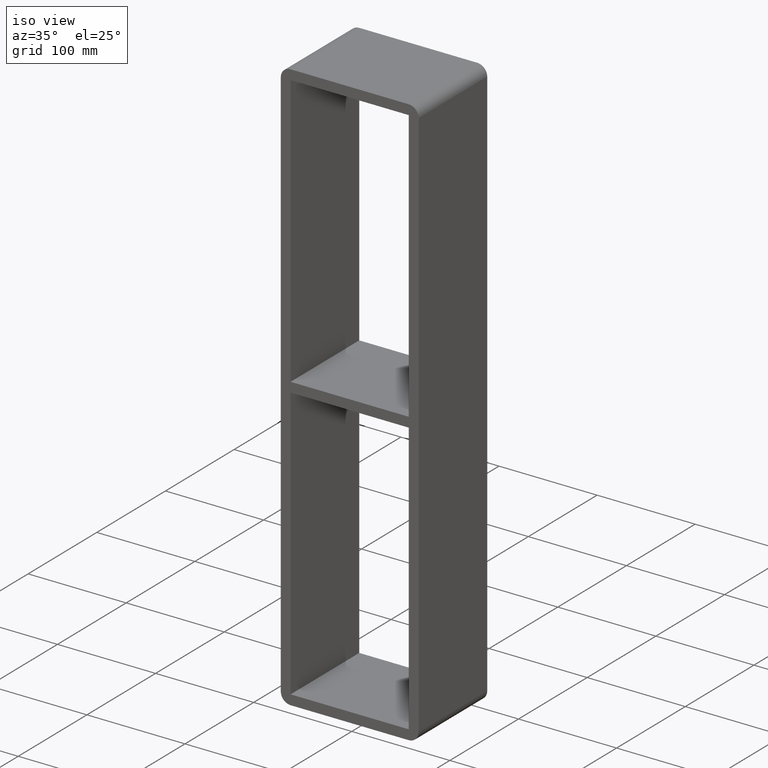
[diagram: clean part render]
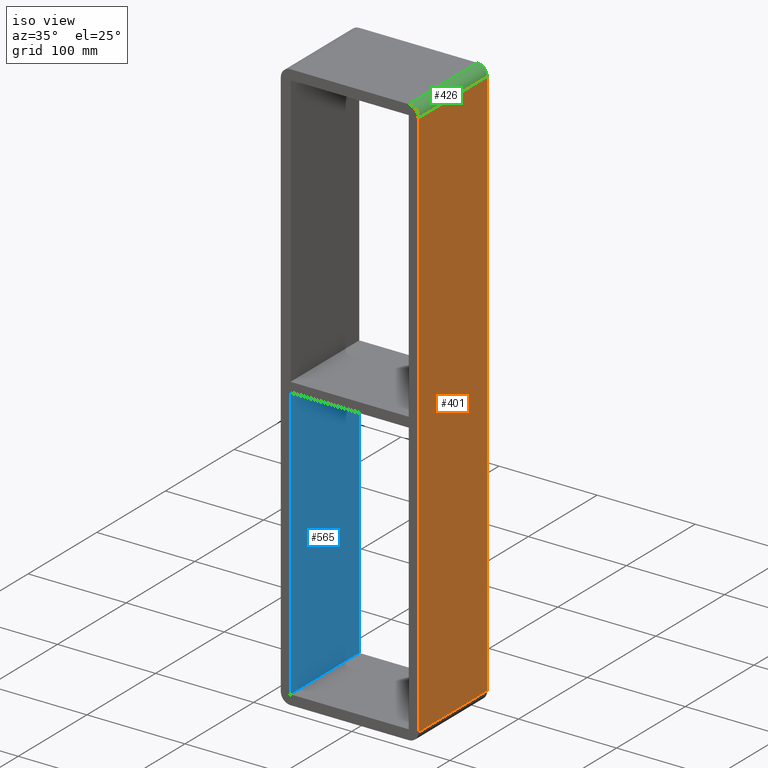
[diagram: same view with three faces highlighted in distinct colors, each labeled with its STEP entity id]
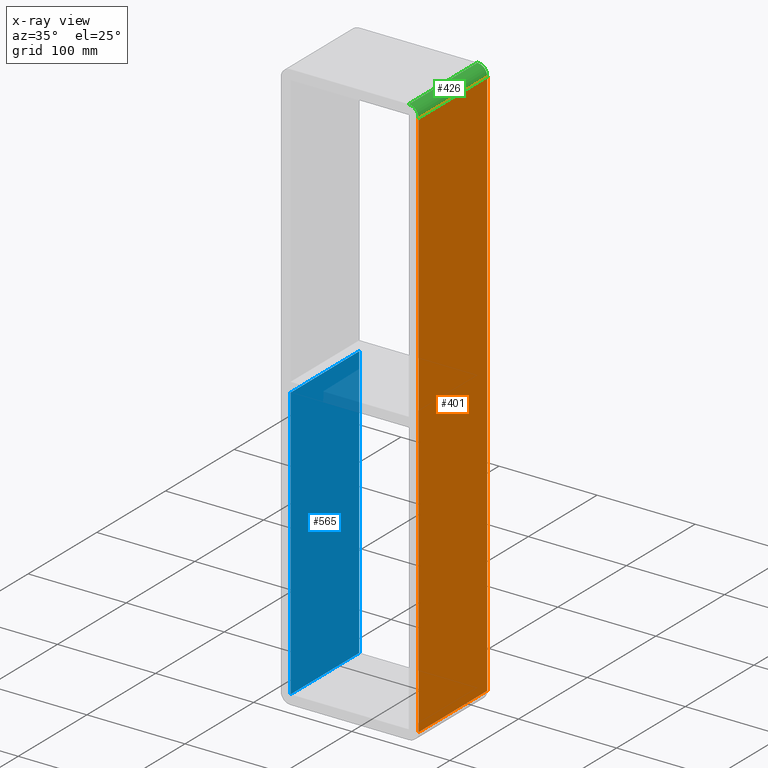
[diagram: x-ray of the same camera — body ghosted, the three highlighted faces saturated]
A machine part, iso view with three faces highlighted in distinct colors.
The next image is the same camera in x-ray (body ghosted, the three faces saturated) — at least one of them is partly hidden behind the body in this view.
Their STEP definitions:

[orange] entity #401 — the highlighted planar face has unit normal (1, 0, 0).
#248=CARTESIAN_POINT('',(70.25,97.0,-283.00000000000006));
#249=VERTEX_POINT('',#248);
#257=CARTESIAN_POINT('',(70.25,-3.0,-283.00000000000006));
#258=VERTEX_POINT('',#257);
#259=CARTESIAN_POINT('',(70.25,97.0,-283.00000000000006));
#260=DIRECTION('',(0.0,-1.0,0.0));
#261=VECTOR('',#260,100.0);
#262=LINE('',#259,#261);
#263=EDGE_CURVE('',#249,#258,#262,.T.);
#289=CARTESIAN_POINT('',(70.25,-3.0,283.0));
#290=VERTEX_POINT('',#289);
#291=CARTESIAN_POINT('',(70.25,-3.0,-283.0));
#292=DIRECTION('',(0.0,0.0,1.0));
#293=VECTOR('',#292,566.0);
#294=LINE('',#291,#293);
#295=EDGE_CURVE('',#258,#290,#294,.T.);
#378=CARTESIAN_POINT('',(70.25,0.0,293.0));
#379=DIRECTION('',(1.0,0.0,0.0));
#380=DIRECTION('',(0.0,0.0,-1.0));
#381=AXIS2_PLACEMENT_3D('',#378,#379,#380);
#382=PLANE('',#381);
#383=ORIENTED_EDGE('',*,*,#263,.F.);
#384=CARTESIAN_POINT('',(70.25,97.0,283.0));
#385=VERTEX_POINT('',#384);
#386=CARTESIAN_POINT('',(70.25,97.0,283.0));
#387=DIRECTION('',(0.0,0.0,-1.0));
#388=VECTOR('',#387,566.0);
#389=LINE('',#386,#388);
#390=EDGE_CURVE('',#385,#249,#389,.T.);
#391=ORIENTED_EDGE('',*,*,#390,.F.);
#392=CARTESIAN_POINT('',(70.25,-3.0,283.0));
#393=DIRECTION('',(0.0,1.0,0.0));
#394=VECTOR('',#393,100.0);
#395=LINE('',#392,#394);
#396=EDGE_CURVE('',#290,#385,#395,.T.);
#397=ORIENTED_EDGE('',*,*,#396,.F.);
#398=ORIENTED_EDGE('',*,*,#295,.F.);
#399=EDGE_LOOP('',(#383,#391,#397,#398));
#400=FACE_OUTER_BOUND('',#399,.T.);
#401=ADVANCED_FACE('',(#400),#382,.T.);

[blue] entity #565 — the highlighted planar face has unit normal (-1, 0, 0).
#75=CARTESIAN_POINT('',(-60.249999999999673,-3.0,-5.000000000009379));
#76=VERTEX_POINT('',#75);
#83=CARTESIAN_POINT('',(-60.249999999999673,97.0,-5.000000000009379));
#84=VERTEX_POINT('',#83);
#85=CARTESIAN_POINT('',(-60.25,97.0,-5.000000000009383));
#86=DIRECTION('',(0.0,-1.0,0.0));
#87=VECTOR('',#86,100.0);
#88=LINE('',#85,#87);
#89=EDGE_CURVE('',#84,#76,#88,.T.);
#361=CARTESIAN_POINT('',(-60.25,-3.0,-282.99999999999994));
#362=VERTEX_POINT('',#361);
#369=CARTESIAN_POINT('',(-60.25,-3.0,-282.99999999999994));
#370=DIRECTION('',(0.0,0.0,1.0));
#371=VECTOR('',#370,277.99999999999056);
#372=LINE('',#369,#371);
#373=EDGE_CURVE('',#362,#76,#372,.T.);
#542=CARTESIAN_POINT('',(-60.25,0.0,-282.99999999999994));
#543=DIRECTION('',(-1.0,0.0,0.0));
#544=DIRECTION('',(0.0,0.0,1.0));
#545=AXIS2_PLACEMENT_3D('',#542,#543,#544);
#546=PLANE('',#545);
#547=ORIENTED_EDGE('',*,*,#89,.T.);
#548=ORIENTED_EDGE('',*,*,#373,.F.);
#549=CARTESIAN_POINT('',(-60.25,97.0,-282.99999999999994));
#550=VERTEX_POINT('',#549);
#551=CARTESIAN_POINT('',(-60.25,-3.0,-282.99999999999994));
#552=DIRECTION('',(0.0,1.0,0.0));
#553=VECTOR('',#552,100.0);
#554=LINE('',#551,#553);
#555=EDGE_CURVE('',#362,#550,#554,.T.);
#556=ORIENTED_EDGE('',*,*,#555,.T.);
#557=CARTESIAN_POINT('',(-60.25,97.0,-5.000000000009379));
#558=DIRECTION('',(0.0,0.0,-1.0));
#559=VECTOR('',#558,277.99999999999056);
#560=LINE('',#557,#559);
#561=EDGE_CURVE('',#84,#550,#560,.T.);
#562=ORIENTED_EDGE('',*,*,#561,.F.);
#563=EDGE_LOOP('',(#547,#548,#556,#562));
#564=FACE_OUTER_BOUND('',#563,.T.);
#565=ADVANCED_FACE('',(#564),#546,.F.);

[green] entity #426 — the highlighted cylindrical surface (edge-blend (fillet) strip) has radius 10 mm, axis along (0, -1, 0).
#289=CARTESIAN_POINT('',(70.25,-3.0,283.0));
#290=VERTEX_POINT('',#289);
#297=CARTESIAN_POINT('',(60.25,-3.0,293.0));
#298=VERTEX_POINT('',#297);
#299=CARTESIAN_POINT('',(60.25,-3.0,283.0));
#300=DIRECTION('',(0.0,1.0,0.0));
#301=DIRECTION('',(0.707106781186547,0.0,0.707106781186547));
#302=AXIS2_PLACEMENT_3D('',#299,#300,#301);
#303=CIRCLE('',#302,9.999999999999998);
#304=EDGE_CURVE('',#298,#290,#303,.T.);
#384=CARTESIAN_POINT('',(70.25,97.0,283.0));
#385=VERTEX_POINT('',#384);
#392=CARTESIAN_POINT('',(70.25,-3.0,283.0));
#393=DIRECTION('',(0.0,1.0,0.0));
#394=VECTOR('',#393,100.0);
#395=LINE('',#392,#394);
#396=EDGE_CURVE('',#290,#385,#395,.T.);
#402=CARTESIAN_POINT('',(60.25,0.0,283.0));
#403=DIRECTION('',(0.0,-1.0,0.0));
#404=DIRECTION('',(0.707106781186547,0.0,0.707106781186547));
#405=AXIS2_PLACEMENT_3D('',#402,#403,#404);
#406=CYLINDRICAL_SURFACE('',#405,10.0);
#407=ORIENTED_EDGE('',*,*,#304,.T.);
#408=ORIENTED_EDGE('',*,*,#396,.T.);
#409=CARTESIAN_POINT('',(60.25,97.0,293.0));
#410=VERTEX_POINT('',#409);
#411=CARTESIAN_POINT('',(60.25,97.0,283.0));
#412=DIRECTION('',(0.0,-1.0,0.0));
#413=DIRECTION('',(0.707106781186547,0.0,0.707106781186547));
#414=AXIS2_PLACEMENT_3D('',#411,#412,#413);
#415=CIRCLE('',#414,9.999999999999998);
#416=EDGE_CURVE('',#385,#410,#415,.T.);
#417=ORIENTED_EDGE('',*,*,#416,.T.);
#418=CARTESIAN_POINT('',(60.25,97.0,293.0));
#419=DIRECTION('',(0.0,-1.0,0.0));
#420=VECTOR('',#419,100.0);
#421=LINE('',#418,#420);
#422=EDGE_CURVE('',#410,#298,#421,.T.);
#423=ORIENTED_EDGE('',*,*,#422,.T.);
#424=EDGE_LOOP('',(#407,#408,#417,#423));
#425=FACE_OUTER_BOUND('',#424,.T.);
#426=ADVANCED_FACE('',(#425),#406,.T.);